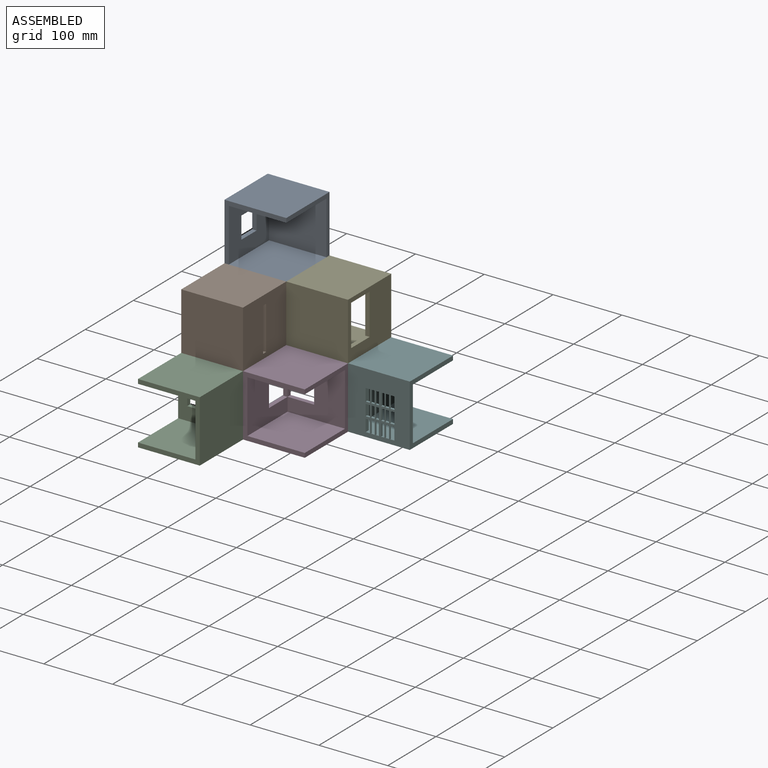
[diagram: assembled view]
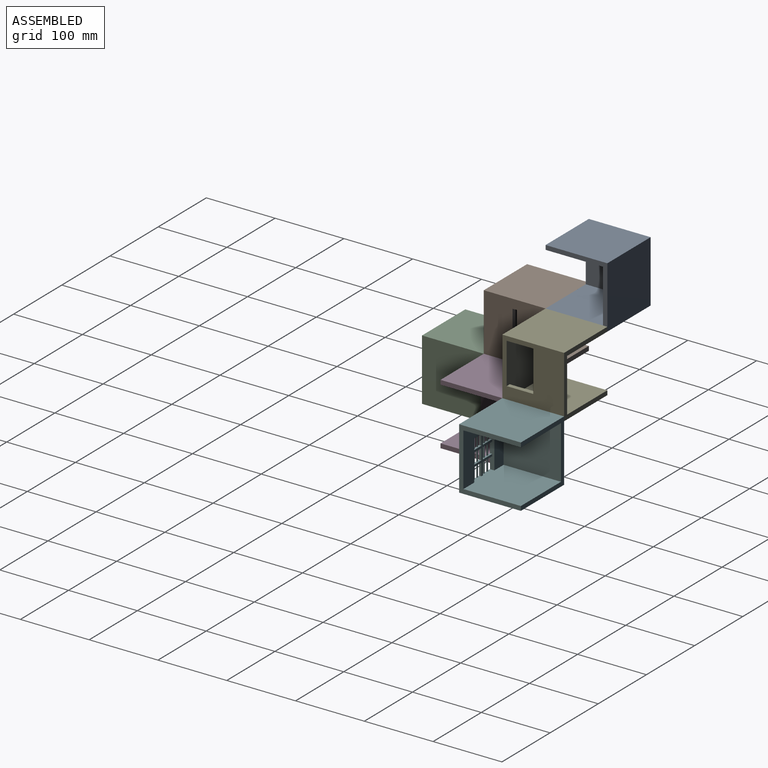
[diagram: assembled view, second angle]
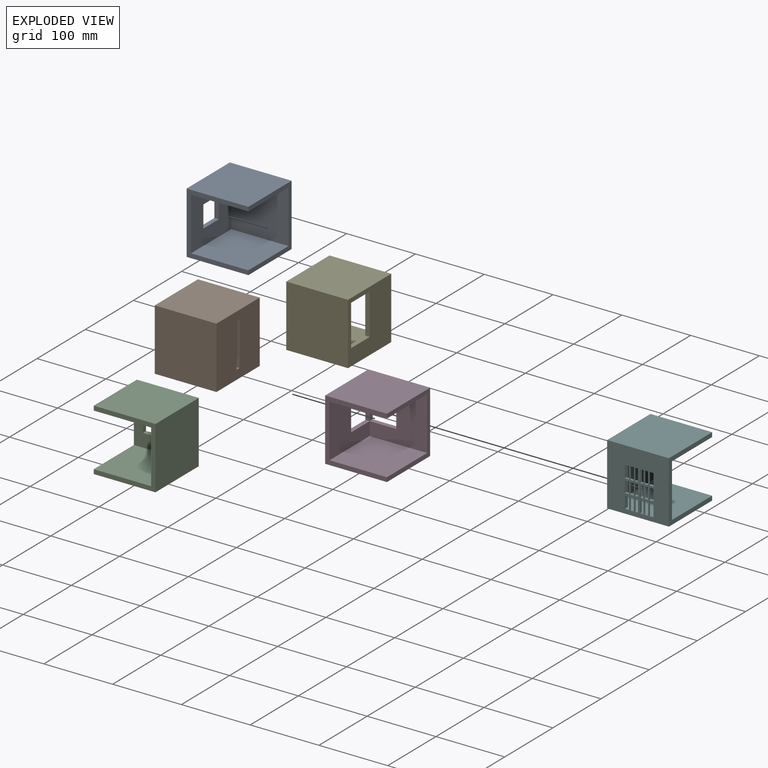
[diagram: exploded view]
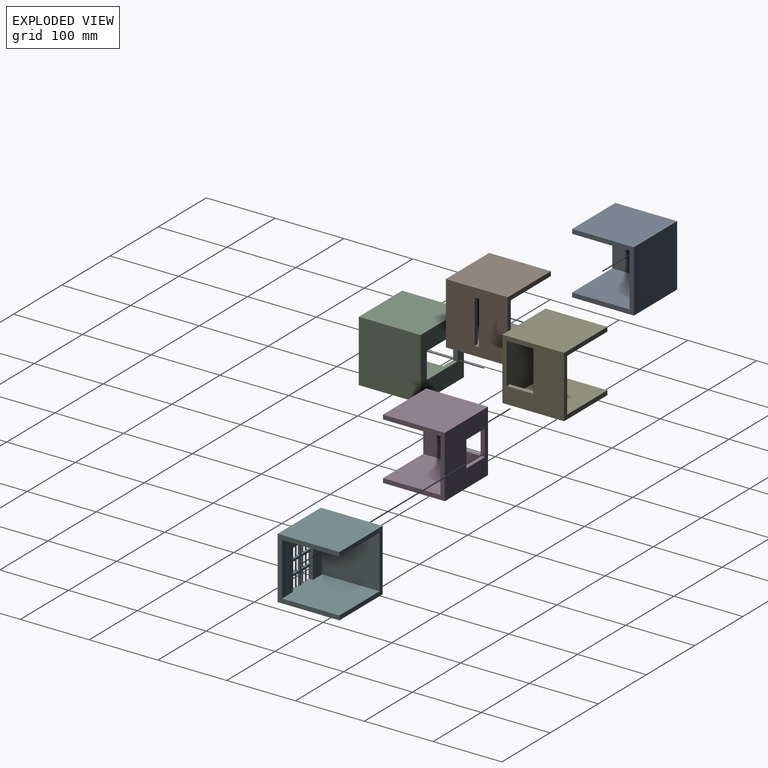
[diagram: exploded view, second angle]
ASSEMBLY  parts=6 mates=5
PART A: 14 faces, bbox 89.8x89.8x89.8 mm
  f0: plane 89.8x89.8mm, normal (-1,0,0), area 7060.3mm2, adj f4,f5,f6,f8,f10,f11,f12,f13
  f1: plane 83.45x77.1mm, normal (1,0,0), area 5430.2mm2, adj f2,f5,f7,f9,f10,f11,f12,f13
  f2: plane 83.45x83.45mm, normal (0,0,1), area 6964.3mm2, adj f1,f3,f5,f7
  f3: plane 89.8x89.8mm, normal (1,0,0), area 1630.1mm2, adj f2,f4,f5,f6,f7,f8,f9
  f4: plane 89.8x89.8mm, normal (0,1,0), area 8064.5mm2, adj f0,f3,f6,f8
  f5: plane 89.8x89.8mm, normal (0,-1,0), area 1630.1mm2, adj f0,f1,f2,f3,f6,f8,f9
  f6: plane 89.8x89.8mm, normal (0,0,-1), area 8064.5mm2, adj f0,f3,f4,f5
  f7: plane 83.45x77.1mm, normal (0,-1,0), area 6434.4mm2, adj f1,f2,f3,f9
  f8: plane 89.8x89.8mm, normal (0,0,1), area 8064.5mm2, adj f0,f3,f4,f5
  f9: plane 83.45x83.45mm, normal (0,0,-1), area 6964.3mm2, adj f1,f3,f5,f7
  f10: plane 31.69x6.35mm, normal (0,0,1), area 201.2mm2, adj f0,f1,f11,f13
  f11: plane 31.69x6.35mm, normal (0,-1,0), area 201.2mm2, adj f0,f1,f10,f12
  f12: plane 31.69x6.35mm, normal (0,0,-1), area 201.2mm2, adj f0,f1,f11,f13
  f13: plane 31.69x6.35mm, normal (0,1,0), area 201.2mm2, adj f0,f1,f10,f12
PART B: 14 faces, bbox 89.8x89.8x89.8 mm
  f0: plane 89.8x89.8mm, normal (-1,0,0), area 7661.3mm2, adj f4,f5,f6,f8,f10,f11,f12,f13
  f1: plane 83.45x77.1mm, normal (1,0,0), area 6031.2mm2, adj f2,f5,f7,f9,f10,f11,f12,f13
  f2: plane 83.45x83.45mm, normal (0,0,1), area 6964.3mm2, adj f1,f3,f5,f7
  f3: plane 89.8x89.8mm, normal (1,0,0), area 1630.1mm2, adj f2,f4,f5,f6,f7,f8,f9
  f4: plane 89.8x89.8mm, normal (0,1,0), area 8064.5mm2, adj f0,f3,f6,f8
  f5: plane 89.8x89.8mm, normal (0,-1,0), area 1630.1mm2, adj f0,f1,f2,f3,f6,f8,f9
  f6: plane 89.8x89.8mm, normal (0,0,-1), area 8064.5mm2, adj f0,f3,f4,f5
  f7: plane 83.45x77.1mm, normal (0,-1,0), area 6434.4mm2, adj f1,f2,f3,f9
  f8: plane 89.8x89.8mm, normal (0,0,1), area 8064.5mm2, adj f0,f3,f4,f5
  f9: plane 83.45x83.45mm, normal (0,0,-1), area 6964.3mm2, adj f1,f3,f5,f7
  f10: plane 63.5x6.35mm, normal (0,-1,0), area 403.2mm2, adj f0,f1,f11,f13
  f11: plane 6.35x6.35mm, normal (0,0,-1), area 40.3mm2, adj f0,f1,f10,f12
  f12: plane 63.5x6.35mm, normal (0,1,0), area 403.2mm2, adj f0,f1,f11,f13
  f13: plane 6.35x6.35mm, normal (0,0,1), area 40.3mm2, adj f0,f1,f10,f12
PART C: 14 faces, bbox 89.8x89.8x89.8 mm
  f0: plane 89.8x89.8mm, normal (-1,0,0), area 5645.1mm2, adj f4,f5,f6,f8,f10,f11,f12,f13
  f1: plane 83.45x77.1mm, normal (1,0,0), area 4015.1mm2, adj f2,f5,f7,f9,f10,f11,f12,f13
  f2: plane 83.45x83.45mm, normal (0,0,1), area 6964.3mm2, adj f1,f3,f5,f7
  f3: plane 89.8x89.8mm, normal (1,0,0), area 1630.1mm2, adj f2,f4,f5,f6,f7,f8,f9
  f4: plane 89.8x89.8mm, normal (0,1,0), area 8064.5mm2, adj f0,f3,f6,f8
  f5: plane 89.8x89.8mm, normal (0,-1,0), area 1630.1mm2, adj f0,f1,f2,f3,f6,f8,f9
  f6: plane 89.8x89.8mm, normal (0,0,-1), area 8064.5mm2, adj f0,f3,f4,f5
  f7: plane 83.45x77.1mm, normal (0,-1,0), area 6434.4mm2, adj f1,f2,f3,f9
  f8: plane 89.8x89.8mm, normal (0,0,1), area 8064.5mm2, adj f0,f3,f4,f5
  f9: plane 83.45x83.45mm, normal (0,0,-1), area 6964.3mm2, adj f1,f3,f5,f7
  f10: plane 38.1x6.35mm, normal (0,-1,0), area 241.9mm2, adj f0,f1,f11,f13
  f11: plane 63.5x6.35mm, normal (0,0,-1), area 403.2mm2, adj f0,f1,f10,f12
  f12: plane 38.1x6.35mm, normal (0,1,0), area 241.9mm2, adj f0,f1,f11,f13
  f13: plane 63.5x6.35mm, normal (0,0,1), area 403.2mm2, adj f0,f1,f10,f12
PART D: 17 faces, bbox 89.8x89.8x89.8 mm
  f0: plane 89.8x89.8mm, normal (-1,0,0), area 6596.6mm2, adj f5,f6,f7,f8,f9,f14,f15,f16
  f1: plane 83.45x77.1mm, normal (1,0,0), area 4966.5mm2, adj f3,f6,f8,f10,f14,f15,f16
  f2: plane 37.93x6.35mm, normal (1,0,0), area 240.9mm2, adj f5,f8,f11,f12
  f3: plane 83.45x83.45mm, normal (0,0,1), area 6964.3mm2, adj f1,f4,f6,f8
  f4: plane 89.8x89.8mm, normal (1,0,0), area 1630.1mm2, adj f3,f5,f6,f7,f8,f9,f10
  f5: plane 89.8x89.8mm, normal (0,1,0), area 6602.2mm2, adj f0,f2,f4,f7,f9,f11,f12,f13
  f6: plane 89.8x89.8mm, normal (0,-1,0), area 1630.1mm2, adj f0,f1,f3,f4,f7,f9,f10
  f7: plane 89.8x89.8mm, normal (0,0,-1), area 8064.5mm2, adj f0,f4,f5,f6
  f8: plane 89.8x77.1mm, normal (0,-1,0), area 5213.8mm2, adj f0,f1,f2,f3,f4,f10,f11,f12
  f9: plane 89.8x89.8mm, normal (0,0,1), area 8064.5mm2, adj f0,f4,f5,f6
  f10: plane 83.45x83.45mm, normal (0,0,-1), area 6964.3mm2, adj f1,f4,f6,f8
  f11: plane 38.56x6.35mm, normal (0,0,-1), area 244.9mm2, adj f2,f5,f8,f13
  f12: plane 38.55x6.35mm, normal (0,0,1), area 244.8mm2, adj f2,f5,f8,f13
  f13: plane 37.92x6.35mm, normal (-1,0,0), area 240.8mm2, adj f5,f8,f11,f12
  f14: plane 38.55x6.35mm, normal (0,0,-1), area 244.8mm2, adj f0,f1,f8,f16
  f15: plane 38.56x6.35mm, normal (0,0,1), area 244.9mm2, adj f0,f1,f8,f16
  f16: plane 38.08x6.35mm, normal (0,1,0), area 241.8mm2, adj f0,f1,f14,f15
PART E: 12 faces, bbox 89.8x89.8x89.8 mm
  f0: plane 83.45x83.45mm, normal (0,0,1), area 6964.3mm2, adj f1,f4,f6,f7
  f1: plane 89.8x89.8mm, normal (1,0,0), area 1630.1mm2, adj f0,f2,f4,f5,f6,f8,f9
  f2: plane 89.8x89.8mm, normal (0,1,0), area 8064.5mm2, adj f1,f3,f5,f8
  f3: plane 89.8x89.8mm, normal (-1,0,0), area 5767.7mm2, adj f2,f4,f5,f6,f8,f9,f10,f11
  f4: plane 89.8x89.8mm, normal (0,-1,0), area 1630.1mm2, adj f0,f1,f3,f5,f7,f8,f9
  f5: plane 89.8x89.8mm, normal (0,0,-1), area 8064.5mm2, adj f1,f2,f3,f4
  f6: plane 89.8x77.1mm, normal (0,-1,0), area 6812.7mm2, adj f0,f1,f3,f7,f9,f11
  f7: plane 83.45x77.1mm, normal (1,0,0), area 4137.6mm2, adj f0,f4,f6,f9,f10,f11
  f8: plane 89.8x89.8mm, normal (0,0,1), area 8064.5mm2, adj f1,f2,f3,f4
  f9: plane 89.8x83.45mm, normal (0,0,-1), area 7209.1mm2, adj f1,f3,f4,f6,f7,f10
  f10: plane 59.57x6.35mm, normal (0,1,0), area 378.3mm2, adj f3,f7,f9,f11
  f11: plane 38.56x6.35mm, normal (0,0,1), area 244.9mm2, adj f3,f6,f7,f10
PART F: 64 faces, bbox 89.8x89.8x89.8 mm
  f0: plane 57.83x41.73mm, normal (1,0,0), area 428.4mm2, adj f3,f11,f12,f13,f16,f20,f22,f27
  f1: plane 89.8x89.8mm, normal (-1,0,0), area 6406.9mm2, adj f3,f5,f6,f7,f9,f11,f12,f13
  f2: plane 83.45x77.1mm, normal (1,0,0), area 4021.5mm2, adj f3,f6,f8,f10,f11,f12,f13
  f3: plane 89.8x83.45mm, normal (0,0,1), area 7209.1mm2, adj f0,f1,f2,f4,f6,f8,f11,f12
  f4: plane 89.8x89.8mm, normal (1,0,0), area 1630.1mm2, adj f3,f5,f6,f7,f8,f9,f10
  f5: plane 89.8x89.8mm, normal (0,1,0), area 8064.5mm2, adj f1,f4,f7,f9
  f6: plane 89.8x89.8mm, normal (0,-1,0), area 1630.1mm2, adj f1,f2,f3,f4,f7,f9,f10
  f7: plane 89.8x89.8mm, normal (0,0,-1), area 8064.5mm2, adj f1,f4,f5,f6
  f8: plane 83.45x77.1mm, normal (0,-1,0), area 6434.4mm2, adj f2,f3,f4,f10
  f9: plane 89.8x89.8mm, normal (0,0,1), area 8064.5mm2, adj f1,f4,f5,f6
  f10: plane 83.45x83.45mm, normal (0,0,-1), area 6964.3mm2, adj f2,f4,f6,f8
  f11: plane 57.83x6.35mm, normal (0,1,0), area 347mm2, adj f0,f1,f2,f3,f13,f32,f43,f49
  f12: plane 57.83x6.35mm, normal (0,-1,0), area 347mm2, adj f0,f1,f2,f3,f13,f20,f22,f28
  f13: plane 41.73x6.35mm, normal (0,0,-1), area 244.8mm2, adj f0,f1,f2,f11,f12,f14,f23,f24
  f14: plane 17.69x1.59mm, normal (0,-1,0), area 28.1mm2, adj f1,f13,f32,f59
  f15: plane 17.69x1.59mm, normal (0,1,0), area 28.1mm2, adj f1,f3,f36,f57
  f16: plane 16.1x3.18mm, normal (0,1,0), area 51.1mm2, adj f0,f1,f20,f22
  f17: plane 16.1x1.59mm, normal (0,-1,0), area 25.6mm2, adj f1,f20,f22,f63
  f18: plane 16.1x1.59mm, normal (0,1,0), area 25.6mm2, adj f1,f20,f22,f63
  f19: plane 16.1x1.59mm, normal (0,-1,0), area 25.6mm2, adj f1,f20,f22,f62
  f20: plane 19.28x3.18mm, normal (0,0,-1), area 56.2mm2, adj f0,f1,f12,f16,f17,f18,f19,f21
  f21: plane 16.1x1.59mm, normal (0,1,0), area 25.6mm2, adj f1,f20,f22,f62
  f22: plane 19.28x3.18mm, normal (0,0,1), area 56.2mm2, adj f0,f1,f12,f16,f17,f18,f19,f21
  f23: plane 17.69x1.59mm, normal (0,1,0), area 28.1mm2, adj f1,f13,f28,f61
  f24: plane 17.69x1.59mm, normal (0,1,0), area 28.1mm2, adj f1,f13,f28,f60
  f25: plane 17.69x1.59mm, normal (0,-1,0), area 28.1mm2, adj f1,f13,f28,f61
  f26: plane 17.69x1.59mm, normal (0,-1,0), area 28.1mm2, adj f1,f13,f28,f60
  f27: plane 17.69x3.18mm, normal (0,1,0), area 56.2mm2, adj f0,f1,f13,f28
  f28: plane 19.28x3.18mm, normal (0,0,1), area 56.2mm2, adj f0,f1,f12,f23,f24,f25,f26,f27
  f29: plane 17.69x3.18mm, normal (0,-1,0), area 56.2mm2, adj f0,f1,f13,f32
  f30: plane 17.69x1.59mm, normal (0,1,0), area 28.1mm2, adj f1,f13,f32,f58
  f31: plane 17.69x1.59mm, normal (0,1,0), area 28.1mm2, adj f1,f13,f32,f59
  f32: plane 19.28x3.18mm, normal (0,0,1), area 56.2mm2, adj f0,f1,f11,f14,f29,f30,f31,f33
  f33: plane 17.69x1.59mm, normal (0,-1,0), area 28.1mm2, adj f1,f13,f32,f58
  f34: plane 17.69x1.59mm, normal (0,1,0), area 28.1mm2, adj f1,f3,f36,f56
  f35: plane 17.69x1.59mm, normal (0,-1,0), area 28.1mm2, adj f1,f3,f36,f57
  f36: plane 19.28x3.18mm, normal (0,0,-1), area 56.2mm2, adj f0,f1,f12,f15,f34,f35,f37,f38
  f37: plane 17.69x3.18mm, normal (0,1,0), area 56.2mm2, adj f0,f1,f3,f36
  f38: plane 17.69x1.59mm, normal (0,-1,0), area 28.1mm2, adj f1,f3,f36,f56
  f39: plane 17.69x1.59mm, normal (0,1,0), area 28.1mm2, adj f1,f3,f43,f55
  f40: plane 17.69x3.18mm, normal (0,-1,0), area 56.2mm2, adj f0,f1,f3,f43
  f41: plane 17.69x1.59mm, normal (0,1,0), area 28.1mm2, adj f1,f3,f43,f54
  f42: plane 17.69x1.59mm, normal (0,-1,0), area 28.1mm2, adj f1,f3,f43,f55
  f43: plane 19.28x3.18mm, normal (0,0,-1), area 56.2mm2, adj f0,f1,f11,f39,f40,f41,f42,f44
  f44: plane 17.69x1.59mm, normal (0,-1,0), area 28.1mm2, adj f1,f3,f43,f54
  f45: plane 16.1x1.59mm, normal (0,-1,0), area 25.6mm2, adj f1,f49,f51,f53
  f46: plane 16.1x1.59mm, normal (0,1,0), area 25.6mm2, adj f1,f49,f51,f53
  f47: plane 16.1x1.59mm, normal (0,-1,0), area 25.6mm2, adj f1,f49,f51,f52
  f48: plane 16.1x1.59mm, normal (0,1,0), area 25.6mm2, adj f1,f49,f51,f52
  f49: plane 19.28x3.18mm, normal (0,0,1), area 56.2mm2, adj f0,f1,f11,f45,f46,f47,f48,f50
  f50: plane 16.1x3.18mm, normal (0,-1,0), area 51.1mm2, adj f0,f1,f49,f51
  f51: plane 19.28x3.18mm, normal (0,0,-1), area 56.2mm2, adj f0,f1,f11,f45,f46,f47,f48,f50
  f52: plane 16.1x1.59mm, normal (1,0,0), area 25.6mm2, adj f47,f48,f49,f51
  f53: plane 16.1x1.59mm, normal (1,0,0), area 25.6mm2, adj f45,f46,f49,f51
  f54: plane 17.69x1.59mm, normal (1,0,0), area 28.1mm2, adj f3,f41,f43,f44
  f55: plane 17.69x1.59mm, normal (1,0,0), area 28.1mm2, adj f3,f39,f42,f43
  f56: plane 17.69x1.59mm, normal (1,0,0), area 28.1mm2, adj f3,f34,f36,f38
  f57: plane 17.69x1.59mm, normal (1,0,0), area 28.1mm2, adj f3,f15,f35,f36
  f58: plane 17.69x1.59mm, normal (1,0,0), area 28.1mm2, adj f13,f30,f32,f33
  f59: plane 17.69x1.59mm, normal (1,0,0), area 28.1mm2, adj f13,f14,f31,f32
  f60: plane 17.69x1.59mm, normal (1,0,0), area 28.1mm2, adj f13,f24,f26,f28
  f61: plane 17.69x1.59mm, normal (1,0,0), area 28.1mm2, adj f13,f23,f25,f28
  f62: plane 16.1x1.59mm, normal (1,0,0), area 25.6mm2, adj f19,f20,f21,f22
  f63: plane 16.1x1.59mm, normal (1,0,0), area 25.6mm2, adj f17,f18,f20,f22
PLACE A t=(-4.65,76.44,109.59)mm
PLACE B rot(axis=(0,0,1),180deg) t=(-4.65,-13.36,26.14)mm
PLACE C rot(axis=(0,0,-1),90deg) t=(-4.65,-103.17,-57.32)mm
PLACE D rot(axis=(0,0,1),0deg) t=(85.15,-13.36,-57.32)mm
PLACE E rot(axis=(0,0,-1),180deg) t=(85.15,76.44,26.14)mm
PLACE F rot(axis=(0,0,1),90deg) t=(174.95,76.44,-57.32)mm
MATE fastened F.f5 <-> D.f4  axis (-1,0,0) through (130.05,31.54,32.49)mm
MATE fastened D.f0 <-> C.f4  axis (-1,0,0) through (40.25,-58.27,32.49)mm
MATE fastened A.f3 <-> E.f1  axis (1,0,0) through (40.25,121.34,115.94)mm
MATE fastened C.f0 <-> B.f4  axis (0,1,0) through (-49.55,-58.27,32.49)mm
MATE fastened B.f5 <-> A.f5  axis (0,1,0) through (40.25,31.54,115.94)mm
